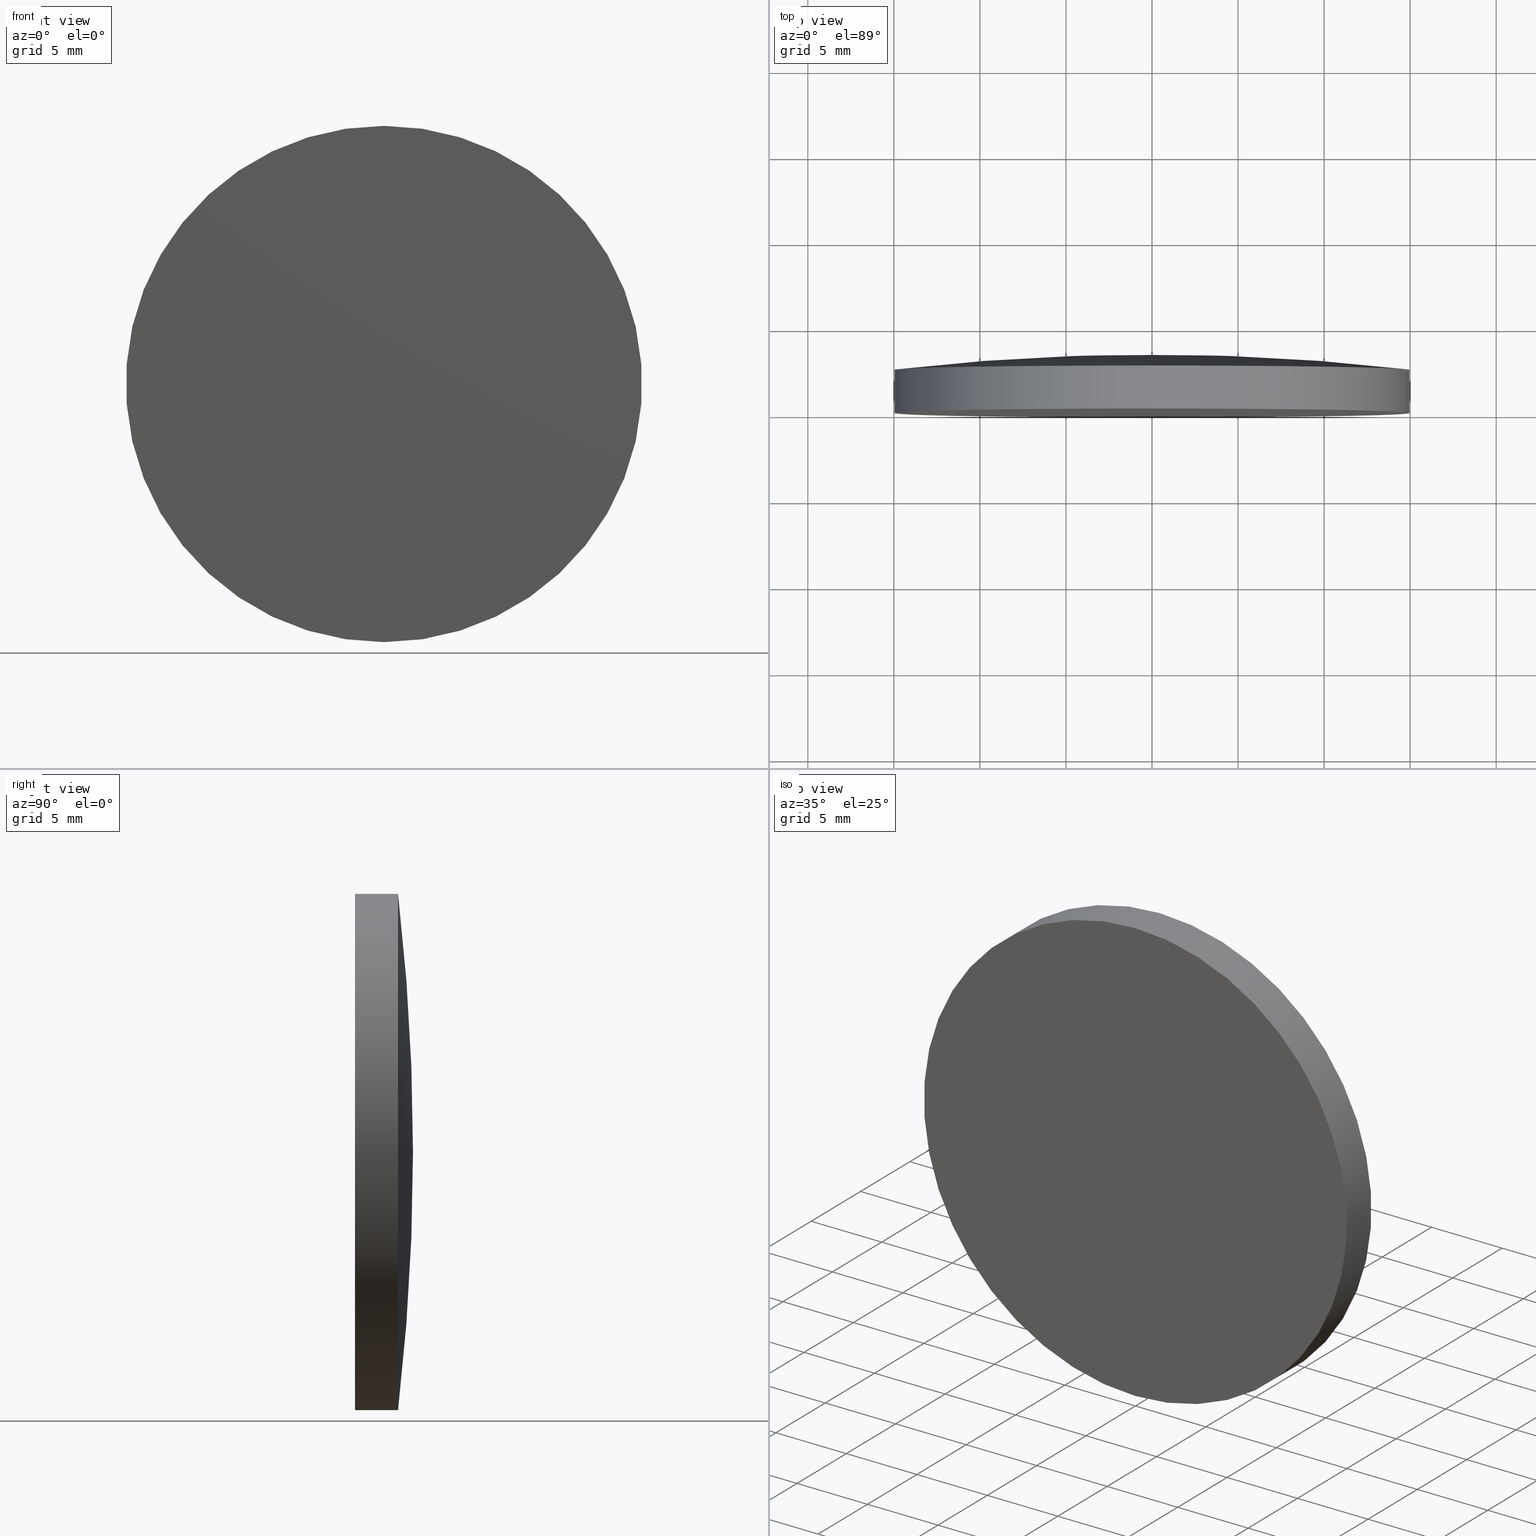
[diagram: canonical four-view strip — front | top / right | iso, engineering-drawing reading convention]
A machine part, canonical four-view strip (front | top / right | iso — engineering-drawing reading convention). The complete STEP part file that produces these views, byte-faithful:
ISO-10303-21;
HEADER;
FILE_DESCRIPTION (( 'STEP AP203' ),
    '1' );
FILE_NAME ('100556.STEP',
    '2024-05-09T01:40:43',
    ( '' ),
    ( '' ),
    'SwSTEP 2.0',
    'SolidWorks 2020',
    '' );
FILE_SCHEMA (( 'CONFIG_CONTROL_DESIGN' ));
ENDSEC;

DATA;
#1 = DIRECTION ( 'NONE',  ( -0.000000000000000000, 1.000000000000000000, -0.000000000000000000 ) ) ;
#2 = APPLICATION_PROTOCOL_DEFINITION ( 'international standard', 'config_control_design', 1994, #194 ) ;
#3 = DATE_AND_TIME ( #85, #177 ) ;
#4 = COORDINATED_UNIVERSAL_TIME_OFFSET ( 8, 0, .AHEAD. ) ;
#5 = EDGE_CURVE ( 'NONE', #88, #112, #66, .T. ) ;
#6 = EDGE_LOOP ( 'NONE', ( #36, #153, #19, #101 ) ) ;
#7 = APPROVAL_ROLE ( '' ) ;
#8 = APPROVAL_PERSON_ORGANIZATION ( #189, #98, #7 ) ;
#9 = PRODUCT_DEFINITION ( 'δ֪', '', #35, #170 ) ;
#10 = DIRECTION ( 'NONE',  ( 0.000000000000000000, 0.000000000000000000, 1.000000000000000000 ) ) ;
#11 =( GEOMETRIC_REPRESENTATION_CONTEXT ( 3 ) GLOBAL_UNCERTAINTY_ASSIGNED_CONTEXT ( ( #89 ) ) GLOBAL_UNIT_ASSIGNED_CONTEXT ( ( #113, #16, #92 ) ) REPRESENTATION_CONTEXT ( 'NONE', 'WORKASPACE' ) );
#12 = CARTESIAN_POINT ( 'NONE',  ( 0.000000000000000000, 3.370000000000000107, 0.000000000000000000 ) ) ;
#13 = PRODUCT_DEFINITION_SHAPE ( 'NONE', 'NONE',  #9 ) ;
#14 = CARTESIAN_POINT ( 'NONE',  ( 0.000000000000000000, 3.370000000000000107, 15.00000000000000000 ) ) ;
#15 = AXIS2_PLACEMENT_3D ( 'NONE', #142, #141, #201 ) ;
#16 =( NAMED_UNIT ( * ) PLANE_ANGLE_UNIT ( ) SI_UNIT ( $, .RADIAN. ) );
#17 = DATE_TIME_ROLE ( 'creation_date' ) ;
#18 = CC_DESIGN_SECURITY_CLASSIFICATION ( #21, ( #35 ) ) ;
#19 = ORIENTED_EDGE ( 'NONE', *, *, #147, .T. ) ;
#20 = APPROVAL_DATE_TIME ( #181, #98 ) ;
#21 = SECURITY_CLASSIFICATION ( '', '', #97 ) ;
#22 = CC_DESIGN_PERSON_AND_ORGANIZATION_ASSIGNMENT ( #148, #99, ( #21 ) ) ;
#23 = ORIENTED_EDGE ( 'NONE', *, *, #137, .F. ) ;
#24 = CC_DESIGN_PERSON_AND_ORGANIZATION_ASSIGNMENT ( #172, #175, ( #26 ) ) ;
#25 = DIRECTION ( 'NONE',  ( 0.000000000000000000, -1.000000000000000000, 0.000000000000000000 ) ) ;
#26 = PRODUCT ( '100556', '100556', '', ( #31 ) ) ;
#27 = DIRECTION ( 'NONE',  ( 0.000000000000000000, 0.000000000000000000, 1.000000000000000000 ) ) ;
#28 = LOCAL_TIME ( 9, 40, 43.00000000000000000, #125 ) ;
#29 = CARTESIAN_POINT ( 'NONE',  ( 0.000000000000000000, 3.370000000000000107, 0.000000000000000000 ) ) ;
#30 = APPROVAL_PERSON_ORGANIZATION ( #64, #192, #127 ) ;
#31 = MECHANICAL_CONTEXT ( 'NONE', #194, 'mechanical' ) ;
#32 = CC_DESIGN_PERSON_AND_ORGANIZATION_ASSIGNMENT ( #157, #58, ( #9 ) ) ;
#33 = EDGE_LOOP ( 'NONE', ( #169, #168, #51 ) ) ;
#34 = APPROVAL_ROLE ( '' ) ;
#35 = PRODUCT_DEFINITION_FORMATION_WITH_SPECIFIED_SOURCE ( '�κ�', '', #26, .NOT_KNOWN. ) ;
#36 = ORIENTED_EDGE ( 'NONE', *, *, #70, .F. ) ;
#37 = CIRCLE ( 'NONE', #96, 15.00000000000000000 ) ;
#38 = FACE_OUTER_BOUND ( 'NONE', #49, .T. ) ;
#39 = DIRECTION ( 'NONE',  ( 0.000000000000000000, 0.000000000000000000, 1.000000000000000000 ) ) ;
#40 = PRODUCT_RELATED_PRODUCT_CATEGORY ( 'detail', '', ( #26 ) ) ;
#41 = ORIENTED_EDGE ( 'NONE', *, *, #65, .T. ) ;
#42 = FACE_OUTER_BOUND ( 'NONE', #33, .T. ) ;
#43 = CARTESIAN_POINT ( 'NONE',  ( 1.836970198721029589E-15, 3.370000000000000107, -15.00000000000000000 ) ) ;
#44 = VECTOR ( 'NONE', #78, 1000.000000000000000 ) ;
#45 = DIRECTION ( 'NONE',  ( 0.000000000000000000, 0.000000000000000000, 1.000000000000000000 ) ) ;
#46 = CALENDAR_DATE ( 2024, 9, 5 ) ;
#47 = ADVANCED_FACE ( 'NONE', ( #174 ), #72, .T. ) ;
#48 = AXIS2_PLACEMENT_3D ( 'NONE', #159, #176, #145 ) ;
#49 = EDGE_LOOP ( 'NONE', ( #23, #69, #117 ) ) ;
#50 = AXIS2_PLACEMENT_3D ( 'NONE', #95, #156, #81 ) ;
#51 = ORIENTED_EDGE ( 'NONE', *, *, #121, .F. ) ;
#52 = ADVANCED_FACE ( 'NONE', ( #38 ), #161, .T. ) ;
#53 = LOCAL_TIME ( 9, 40, 43.00000000000000000, #4 ) ;
#54 = DIRECTION ( 'NONE',  ( -0.000000000000000000, 1.000000000000000000, -0.000000000000000000 ) ) ;
#55 = CC_DESIGN_PERSON_AND_ORGANIZATION_ASSIGNMENT ( #102, #180, ( #35 ) ) ;
#56 = EDGE_LOOP ( 'NONE', ( #119, #131 ) ) ;
#57 = LINE ( 'NONE', #43, #44 ) ;
#58 = PERSON_AND_ORGANIZATION_ROLE ( 'creator' ) ;
#59 = DIRECTION ( 'NONE',  ( 0.000000000000000000, -0.000000000000000000, -1.000000000000000000 ) ) ;
#60 = CARTESIAN_POINT ( 'NONE',  ( 0.000000000000000000, -1.734723475976807094E-15, 15.00000000000000000 ) ) ;
#61 = CARTESIAN_POINT ( 'NONE',  ( 1.836970198721029589E-15, -1.734723475976807094E-15, -15.00000000000000000 ) ) ;
#62 = CARTESIAN_POINT ( 'NONE',  ( 0.000000000000000000, 3.370000000000000107, 0.000000000000000000 ) ) ;
#63 = MANIFOLD_SOLID_BREP ( '��ת1', #71 ) ;
#64 = PERSON_AND_ORGANIZATION ( #105, #114 ) ;
#65 = EDGE_CURVE ( 'NONE', #191, #124, #193, .T. ) ;
#66 = CIRCLE ( 'NONE', #135, 15.00000000000000000 ) ;
#67 = APPROVAL_STATUS ( 'not_yet_approved' ) ;
#68 = APPROVAL_DATE_TIME ( #129, #82 ) ;
#69 = ORIENTED_EDGE ( 'NONE', *, *, #5, .T. ) ;
#70 = EDGE_CURVE ( 'NONE', #124, #88, #57, .T. ) ;
#71 = CLOSED_SHELL ( 'NONE', ( #87, #197, #52, #47, #106 ) ) ;
#72 = PLANE ( 'NONE',  #151 ) ;
#73 = DIRECTION ( 'NONE',  ( 0.000000000000000000, 0.000000000000000000, 1.000000000000000000 ) ) ;
#74 = AXIS2_PLACEMENT_3D ( 'NONE', #29, #154, #10 ) ;
#75 = CARTESIAN_POINT ( 'NONE',  ( 1.836970198721026039E-15, 2.500000000000000444, -14.99999999999996980 ) ) ;
#76 = DATE_AND_TIME ( #46, #28 ) ;
#77 = CARTESIAN_POINT ( 'NONE',  ( 0.000000000000000000, 2.500000000000000444, 14.99999999999996980 ) ) ;
#78 = DIRECTION ( 'NONE',  ( -0.000000000000000000, 1.000000000000000000, -0.000000000000000000 ) ) ;
#79 = CIRCLE ( 'NONE', #132, 129.2400000000000375 ) ;
#80 = LINE ( 'NONE', #14, #183 ) ;
#81 = DIRECTION ( 'NONE',  ( 1.000000000000000000, 0.000000000000000000, 0.000000000000000000 ) ) ;
#82 = APPROVAL ( #67, 'δָ��' ) ;
#83 = PERSON_AND_ORGANIZATION_ROLE ( 'creator' ) ;
#84 = APPROVAL_PERSON_ORGANIZATION ( #134, #82, #34 ) ;
#85 = CALENDAR_DATE ( 2024, 9, 5 ) ;
#86 = ORIENTED_EDGE ( 'NONE', *, *, #167, .F. ) ;
#87 = ADVANCED_FACE ( 'NONE', ( #107 ), #90, .T. ) ;
#88 = VERTEX_POINT ( 'NONE', #75 ) ;
#89 = UNCERTAINTY_MEASURE_WITH_UNIT (LENGTH_MEASURE( 1.000000000000000082E-05 ), #113, 'distance_accuracy_value', 'NONE');
#90 = CYLINDRICAL_SURFACE ( 'NONE', #74, 15.00000000000000000 ) ;
#91 = EDGE_CURVE ( 'NONE', #124, #191, #188, .T. ) ;
#92 =( NAMED_UNIT ( * ) SI_UNIT ( $, .STERADIAN. ) SOLID_ANGLE_UNIT ( ) );
#93 = TOROIDAL_SURFACE ( 'NONE', #48, 0.02931019276951850328, 129.2400000000000375 ) ;
#94 = FACE_OUTER_BOUND ( 'NONE', #6, .T. ) ;
#95 = CARTESIAN_POINT ( 'NONE',  ( 0.000000000000000000, 0.000000000000000000, 0.000000000000000000 ) ) ;
#96 = AXIS2_PLACEMENT_3D ( 'NONE', #144, #111, #45 ) ;
#97 = SECURITY_CLASSIFICATION_LEVEL ( 'unclassified' ) ;
#98 = APPROVAL ( #116, 'δָ��' ) ;
#99 = PERSON_AND_ORGANIZATION_ROLE ( 'classification_officer' ) ;
#100 = DATE_AND_TIME ( #179, #53 ) ;
#101 = ORIENTED_EDGE ( 'NONE', *, *, #5, .F. ) ;
#102 = PERSON_AND_ORGANIZATION ( #105, #114 ) ;
#103 = CC_DESIGN_DATE_AND_TIME_ASSIGNMENT ( #3, #17, ( #9 ) ) ;
#104 = AXIS2_PLACEMENT_3D ( 'NONE', #12, #173, #158 ) ;
#105 = PERSON ( 'δָ��', 'δָ��', 'δָ��', ('δָ��'), ('δָ��'), ('δָ��') ) ;
#106 = ADVANCED_FACE ( 'NONE', ( #94 ), #110, .T. ) ;
#107 = FACE_OUTER_BOUND ( 'NONE', #136, .T. ) ;
#108 = APPLICATION_PROTOCOL_DEFINITION ( 'international standard', 'config_control_design', 1994, #130 ) ;
#109 = CC_DESIGN_APPROVAL ( #82, ( #21 ) ) ;
#110 = CYLINDRICAL_SURFACE ( 'NONE', #104, 15.00000000000000000 ) ;
#111 = DIRECTION ( 'NONE',  ( -0.000000000000000000, 1.000000000000000000, -0.000000000000000000 ) ) ;
#112 = VERTEX_POINT ( 'NONE', #77 ) ;
#113 =( LENGTH_UNIT ( ) NAMED_UNIT ( * ) SI_UNIT ( .MILLI., .METRE. ) );
#114 = ORGANIZATION ( 'δָ��', 'δָ��', '' ) ;
#115 = CALENDAR_DATE ( 2024, 9, 5 ) ;
#116 = APPROVAL_STATUS ( 'not_yet_approved' ) ;
#117 = ORIENTED_EDGE ( 'NONE', *, *, #121, .T. ) ;
#118 = CC_DESIGN_PERSON_AND_ORGANIZATION_ASSIGNMENT ( #150, #83, ( #35 ) ) ;
#119 = ORIENTED_EDGE ( 'NONE', *, *, #65, .F. ) ;
#120 = CARTESIAN_POINT ( 'NONE',  ( 0.000000000000000000, -125.8699966763873448, 0.000000000000000000 ) ) ;
#121 = EDGE_CURVE ( 'NONE', #112, #164, #143, .T. ) ;
#122 = DIRECTION ( 'NONE',  ( 0.000000000000000000, 0.000000000000000000, 1.000000000000000000 ) ) ;
#123 = APPROVAL_STATUS ( 'not_yet_approved' ) ;
#124 = VERTEX_POINT ( 'NONE', #61 ) ;
#125 = COORDINATED_UNIVERSAL_TIME_OFFSET ( 8, 0, .AHEAD. ) ;
#126 = CARTESIAN_POINT ( 'NONE',  ( 3.589463375758273298E-18, -125.8699966763873448, -0.02931019276951850328 ) ) ;
#127 = APPROVAL_ROLE ( '' ) ;
#128 = SHAPE_DEFINITION_REPRESENTATION ( #13, #152 ) ;
#129 = DATE_AND_TIME ( #163, #138 ) ;
#130 = APPLICATION_CONTEXT ( 'configuration controlled 3d designs of mechanical parts and assemblies' ) ;
#131 = ORIENTED_EDGE ( 'NONE', *, *, #91, .F. ) ;
#132 = AXIS2_PLACEMENT_3D ( 'NONE', #126, #186, #160 ) ;
#133 = ORIENTED_EDGE ( 'NONE', *, *, #70, .T. ) ;
#134 = PERSON_AND_ORGANIZATION ( #105, #114 ) ;
#135 = AXIS2_PLACEMENT_3D ( 'NONE', #199, #198, #73 ) ;
#136 = EDGE_LOOP ( 'NONE', ( #41, #133, #86, #165 ) ) ;
#137 = EDGE_CURVE ( 'NONE', #88, #164, #79, .T. ) ;
#138 = LOCAL_TIME ( 9, 40, 43.00000000000000000, #146 ) ;
#139 = CARTESIAN_POINT ( 'NONE',  ( 0.000000000000000000, -1.734723475976807094E-15, 0.000000000000000000 ) ) ;
#140 = APPROVAL_DATE_TIME ( #76, #192 ) ;
#141 = DIRECTION ( 'NONE',  ( -1.000000000000000000, 0.000000000000000000, 0.000000000000000000 ) ) ;
#142 = CARTESIAN_POINT ( 'NONE',  ( 0.000000000000000000, -125.8699966763873448, 0.02931019276951850328 ) ) ;
#143 = CIRCLE ( 'NONE', #15, 129.2400000000000375 ) ;
#144 = CARTESIAN_POINT ( 'NONE',  ( 0.000000000000000000, 2.499999999999998224, 0.000000000000000000 ) ) ;
#145 = DIRECTION ( 'NONE',  ( 0.000000000000000000, 0.000000000000000000, 1.000000000000000000 ) ) ;
#146 = COORDINATED_UNIVERSAL_TIME_OFFSET ( 8, 0, .AHEAD. ) ;
#147 = EDGE_CURVE ( 'NONE', #191, #112, #80, .T. ) ;
#148 = PERSON_AND_ORGANIZATION ( #105, #114 ) ;
#149 = CC_DESIGN_APPROVAL ( #192, ( #9 ) ) ;
#150 = PERSON_AND_ORGANIZATION ( #105, #114 ) ;
#151 = AXIS2_PLACEMENT_3D ( 'NONE', #171, #25, #59 ) ;
#152 = ADVANCED_BREP_SHAPE_REPRESENTATION ( '100556', ( #63, #50 ), #11 ) ;
#153 = ORIENTED_EDGE ( 'NONE', *, *, #91, .T. ) ;
#154 = DIRECTION ( 'NONE',  ( -0.000000000000000000, 1.000000000000000000, -0.000000000000000000 ) ) ;
#155 = LOCAL_TIME ( 9, 40, 43.00000000000000000, #178 ) ;
#156 = DIRECTION ( 'NONE',  ( 0.000000000000000000, 0.000000000000000000, 1.000000000000000000 ) ) ;
#157 = PERSON_AND_ORGANIZATION ( #105, #114 ) ;
#158 = DIRECTION ( 'NONE',  ( 0.000000000000000000, 0.000000000000000000, 1.000000000000000000 ) ) ;
#159 = CARTESIAN_POINT ( 'NONE',  ( 0.000000000000000000, -125.8699966763873448, 0.000000000000000000 ) ) ;
#160 = DIRECTION ( 'NONE',  ( 1.224646799147353454E-16, 0.000000000000000000, -1.000000000000000000 ) ) ;
#161 = TOROIDAL_SURFACE ( 'NONE', #166, 0.02931019276951850328, 129.2400000000000375 ) ;
#162 = DATE_TIME_ROLE ( 'classification_date' ) ;
#163 = CALENDAR_DATE ( 2024, 9, 5 ) ;
#164 = VERTEX_POINT ( 'NONE', #62 ) ;
#165 = ORIENTED_EDGE ( 'NONE', *, *, #147, .F. ) ;
#166 = AXIS2_PLACEMENT_3D ( 'NONE', #120, #54, #122 ) ;
#167 = EDGE_CURVE ( 'NONE', #112, #88, #37, .T. ) ;
#168 = ORIENTED_EDGE ( 'NONE', *, *, #137, .T. ) ;
#169 = ORIENTED_EDGE ( 'NONE', *, *, #167, .T. ) ;
#170 = DESIGN_CONTEXT ( 'detailed design', #130, 'design' ) ;
#171 = CARTESIAN_POINT ( 'NONE',  ( 0.000000000000000000, -9.184850993605147944E-16, 0.000000000000000000 ) ) ;
#172 = PERSON_AND_ORGANIZATION ( #105, #114 ) ;
#173 = DIRECTION ( 'NONE',  ( -0.000000000000000000, 1.000000000000000000, -0.000000000000000000 ) ) ;
#174 = FACE_OUTER_BOUND ( 'NONE', #56, .T. ) ;
#175 = PERSON_AND_ORGANIZATION_ROLE ( 'design_owner' ) ;
#176 = DIRECTION ( 'NONE',  ( -0.000000000000000000, 1.000000000000000000, -0.000000000000000000 ) ) ;
#177 = LOCAL_TIME ( 9, 40, 43.00000000000000000, #200 ) ;
#178 = COORDINATED_UNIVERSAL_TIME_OFFSET ( 8, 0, .AHEAD. ) ;
#179 = CALENDAR_DATE ( 2024, 9, 5 ) ;
#180 = PERSON_AND_ORGANIZATION_ROLE ( 'design_supplier' ) ;
#181 = DATE_AND_TIME ( #115, #155 ) ;
#182 = AXIS2_PLACEMENT_3D ( 'NONE', #139, #185, #27 ) ;
#183 = VECTOR ( 'NONE', #1, 1000.000000000000000 ) ;
#184 = DIRECTION ( 'NONE',  ( -0.000000000000000000, 1.000000000000000000, -0.000000000000000000 ) ) ;
#185 = DIRECTION ( 'NONE',  ( -0.000000000000000000, 1.000000000000000000, -0.000000000000000000 ) ) ;
#186 = DIRECTION ( 'NONE',  ( 1.000000000000000000, 0.000000000000000000, 1.224646799147353207E-16 ) ) ;
#187 = CC_DESIGN_DATE_AND_TIME_ASSIGNMENT ( #100, #162, ( #21 ) ) ;
#188 = CIRCLE ( 'NONE', #182, 15.00000000000000000 ) ;
#189 = PERSON_AND_ORGANIZATION ( #105, #114 ) ;
#190 = AXIS2_PLACEMENT_3D ( 'NONE', #195, #184, #39 ) ;
#191 = VERTEX_POINT ( 'NONE', #60 ) ;
#192 = APPROVAL ( #123, 'δָ��' ) ;
#193 = CIRCLE ( 'NONE', #190, 15.00000000000000000 ) ;
#194 = APPLICATION_CONTEXT ( 'configuration controlled 3d designs of mechanical parts and assemblies' ) ;
#195 = CARTESIAN_POINT ( 'NONE',  ( 0.000000000000000000, -1.734723475976807094E-15, 0.000000000000000000 ) ) ;
#196 = CC_DESIGN_APPROVAL ( #98, ( #35 ) ) ;
#197 = ADVANCED_FACE ( 'NONE', ( #42 ), #93, .T. ) ;
#198 = DIRECTION ( 'NONE',  ( -0.000000000000000000, 1.000000000000000000, -0.000000000000000000 ) ) ;
#199 = CARTESIAN_POINT ( 'NONE',  ( 0.000000000000000000, 2.499999999999998224, 0.000000000000000000 ) ) ;
#200 = COORDINATED_UNIVERSAL_TIME_OFFSET ( 8, 0, .AHEAD. ) ;
#201 = DIRECTION ( 'NONE',  ( 0.000000000000000000, 0.000000000000000000, 1.000000000000000000 ) ) ;
ENDSEC;
END-ISO-10303-21;
